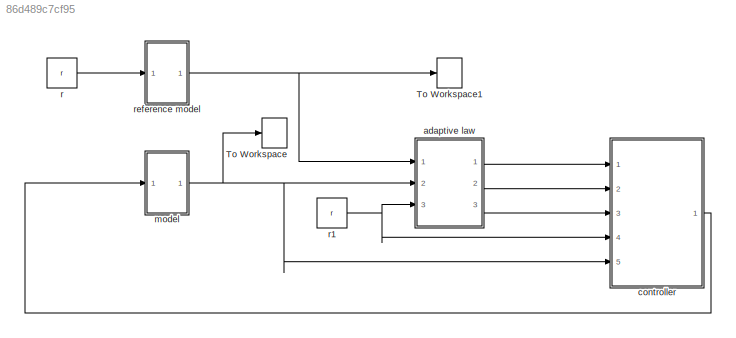
MODEL slx_86d489c7cf95
KIND model
CONFIG AbsTol = auto
CONFIG EnableMultiTasking = off
CONFIG FixedStep = auto
CONFIG MaxStep = auto
CONFIG MinStep = auto
CONFIG RelTol = 1e-3
CONFIG SampleTimeConstraint = Unconstrained
CONFIG Solver = VariableStepAuto
CONFIG SolverName = VariableStepAuto
CONFIG StartTime = 0.0
CONFIG StopTime = 70.0
BLOCK [ToWorkspace] To Workspace
  FixptAsFi = on
  MaxDataPoints = inf
  Ports = [1]
  SampleTime = -1
  Save2DSignal = 3-D array (concatenate along third dimension)
  SaveFormat = Structure With Time
  VariableName = x
BLOCK [ToWorkspace] To Workspace1
  FixptAsFi = on
  MaxDataPoints = inf
  Ports = [1]
  SampleTime = -1
  Save2DSignal = 3-D array (concatenate along third dimension)
  SaveFormat = Structure With Time
  VariableName = x_m
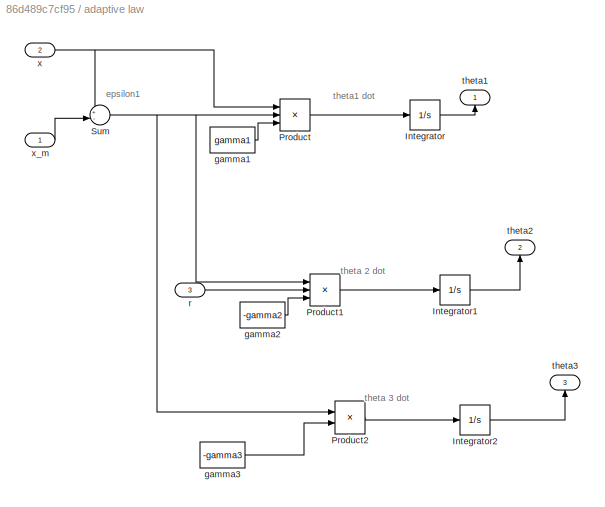
BLOCK [SubSystem] adaptive law
  Ports = [3, 3]
  RequestExecContextInheritance = off
  Variant = off
BLOCK [Integrator] adaptive law/Integrator
  Ports = [1, 1]
BLOCK [Integrator] adaptive law/Integrator1
  Ports = [1, 1]
BLOCK [Integrator] adaptive law/Integrator2
  Ports = [1, 1]
BLOCK [Product] adaptive law/Product
  InputSameDT = off
  Inputs = 3
  OutDataTypeStr = Inherit: Inherit via internal rule
  Ports = [3, 1]
  RndMeth = Floor
  SaturateOnIntegerOverflow = off
BLOCK [Product] adaptive law/Product1
  InputSameDT = off
  Inputs = 3
  OutDataTypeStr = Inherit: Inherit via internal rule
  Ports = [3, 1]
  RndMeth = Floor
  SaturateOnIntegerOverflow = off
BLOCK [Product] adaptive law/Product2
  InputSameDT = off
  OutDataTypeStr = Inherit: Inherit via internal rule
  Ports = [2, 1]
  RndMeth = Floor
  SaturateOnIntegerOverflow = off
BLOCK [Sum] adaptive law/Sum
  IconShape = round
  InputSameDT = off
  Inputs = +-
  OutDataTypeStr = Inherit: Inherit via internal rule
  Ports = [2, 1]
  SaturateOnIntegerOverflow = off
BLOCK [Constant] adaptive law/gamma1
  Value = gamma1
BLOCK [Constant] adaptive law/gamma2
  Value = -gamma2
BLOCK [Constant] adaptive law/gamma3
  Value = -gamma3
BLOCK [Inport] adaptive law/r
  IconDisplay = Port number
  Port = 3
BLOCK [Outport] adaptive law/theta1
  IconDisplay = Port number
BLOCK [Outport] adaptive law/theta2
  IconDisplay = Port number
  Port = 2
BLOCK [Outport] adaptive law/theta3
  IconDisplay = Port number
  Port = 3
BLOCK [Inport] adaptive law/x
  IconDisplay = Port number
  Port = 2
BLOCK [Inport] adaptive law/x_m
  IconDisplay = Port number
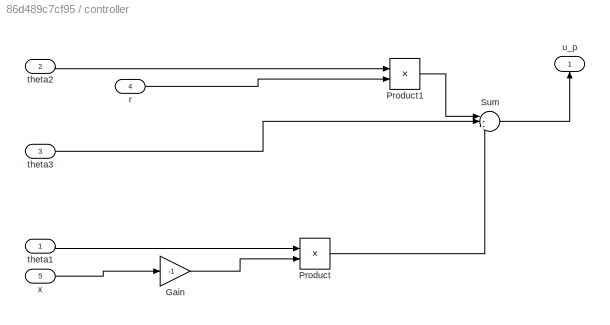
BLOCK [SubSystem] controller
  Ports = [5, 1]
  RequestExecContextInheritance = off
  Variant = off
BLOCK [Gain] controller/Gain
  Gain = -1
  OutDataTypeStr = Inherit: Inherit via internal rule
  ParamDataTypeStr = Inherit: Inherit via internal rule
  SaturateOnIntegerOverflow = off
BLOCK [Product] controller/Product
  InputSameDT = off
  OutDataTypeStr = Inherit: Inherit via internal rule
  Ports = [2, 1]
  RndMeth = Floor
  SaturateOnIntegerOverflow = off
BLOCK [Product] controller/Product1
  InputSameDT = off
  OutDataTypeStr = Inherit: Inherit via internal rule
  Ports = [2, 1]
  RndMeth = Floor
  SaturateOnIntegerOverflow = off
BLOCK [Sum] controller/Sum
  IconShape = round
  InputSameDT = off
  Inputs = |+++
  OutDataTypeStr = Inherit: Inherit via internal rule
  Ports = [3, 1]
  SaturateOnIntegerOverflow = off
BLOCK [Inport] controller/r
  IconDisplay = Port number
  Port = 4
BLOCK [Inport] controller/theta1
  IconDisplay = Port number
BLOCK [Inport] controller/theta2
  IconDisplay = Port number
  Port = 2
BLOCK [Inport] controller/theta3
  IconDisplay = Port number
  Port = 3
BLOCK [Outport] controller/u_p
  IconDisplay = Port number
BLOCK [Inport] controller/x
  IconDisplay = Port number
  Port = 5
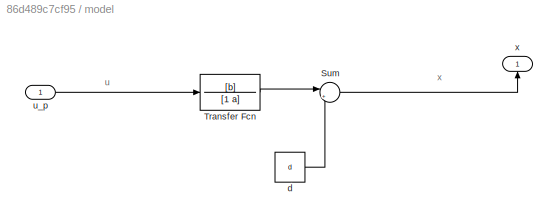
BLOCK [SubSystem] model
  Ports = [1, 1]
  RequestExecContextInheritance = off
  Variant = off
BLOCK [Sum] model/Sum
  IconShape = round
  InputSameDT = off
  Inputs = |++
  OutDataTypeStr = Inherit: Inherit via internal rule
  Ports = [2, 1]
  SaturateOnIntegerOverflow = off
BLOCK [TransferFcn] model/Transfer Fcn
  Denominator = [1 a]
  Numerator = [b]
BLOCK [Constant] model/d
  Value = d
BLOCK [Inport] model/u_p
  IconDisplay = Port number
BLOCK [Outport] model/x
  IconDisplay = Port number
BLOCK [Constant] r
  Value = r
BLOCK [Constant] r1
  Value = r
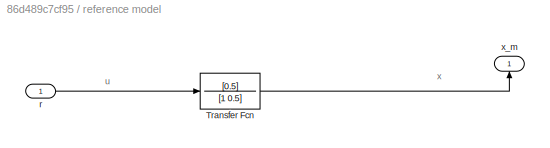
BLOCK [SubSystem] reference model 
  Ports = [1, 1]
  RequestExecContextInheritance = off
  Variant = off
BLOCK [TransferFcn] reference model /Transfer Fcn
  Denominator = [1 0.5]
  Numerator = [0.5]
BLOCK [Inport] reference model /r
  IconDisplay = Port number
BLOCK [Outport] reference model /x_m
  IconDisplay = Port number
ANNOTATION adaptive law: epsilon1
ANNOTATION adaptive law: theta 2 dot
ANNOTATION adaptive law: theta 3 dot
ANNOTATION adaptive law: theta1 dot
ANNOTATION model: u
ANNOTATION model: x
ANNOTATION reference model : u
ANNOTATION reference model : x
LINE adaptive law/Integrator1:1 -> adaptive law/theta2:1
LINE adaptive law/Integrator2:1 -> adaptive law/theta3:1
LINE adaptive law/Integrator:1 -> adaptive law/theta1:1
LINE adaptive law/Product1:1 -> adaptive law/Integrator1:1
LINE adaptive law/Product2:1 -> adaptive law/Integrator2:1
LINE adaptive law/Product:1 -> adaptive law/Integrator:1
NET adaptive law/Sum:1 -> adaptive law/Product1:1, adaptive law/Product2:1, adaptive law/Product:2
LINE adaptive law/gamma1:1 -> adaptive law/Product:3
LINE adaptive law/gamma2:1 -> adaptive law/Product1:3
LINE adaptive law/gamma3:1 -> adaptive law/Product2:2
LINE adaptive law/r:1 -> adaptive law/Product1:2
NET adaptive law/x:1 -> adaptive law/Product:1, adaptive law/Sum:1
LINE adaptive law/x_m:1 -> adaptive law/Sum:2
LINE adaptive law:1 -> controller:1
LINE adaptive law:2 -> controller:2
LINE adaptive law:3 -> controller:3
LINE controller/Gain:1 -> controller/Product:2
LINE controller/Product1:1 -> controller/Sum:1
LINE controller/Product:1 -> controller/Sum:3
LINE controller/Sum:1 -> controller/u_p:1
LINE controller/r:1 -> controller/Product1:2
LINE controller/theta1:1 -> controller/Product:1
LINE controller/theta2:1 -> controller/Product1:1
LINE controller/theta3:1 -> controller/Sum:2
LINE controller/x:1 -> controller/Gain:1
LINE controller:1 -> model:1
LINE model/Sum:1 -> model/x:1
LINE model/Transfer Fcn:1 -> model/Sum:1
LINE model/d:1 -> model/Sum:2
LINE model/u_p:1 -> model/Transfer Fcn:1
NET model:1 -> To Workspace:1, adaptive law:2, controller:5
NET r1:1 -> adaptive law:3, controller:4
LINE r:1 -> reference model :1
LINE reference model /Transfer Fcn:1 -> reference model /x_m:1
LINE reference model /r:1 -> reference model /Transfer Fcn:1
NET reference model :1 -> To Workspace1:1, adaptive law:1
note: NET lines group one-source signal fan-out (src -> all destinations, sorted); 1:1 wires keep LINE
